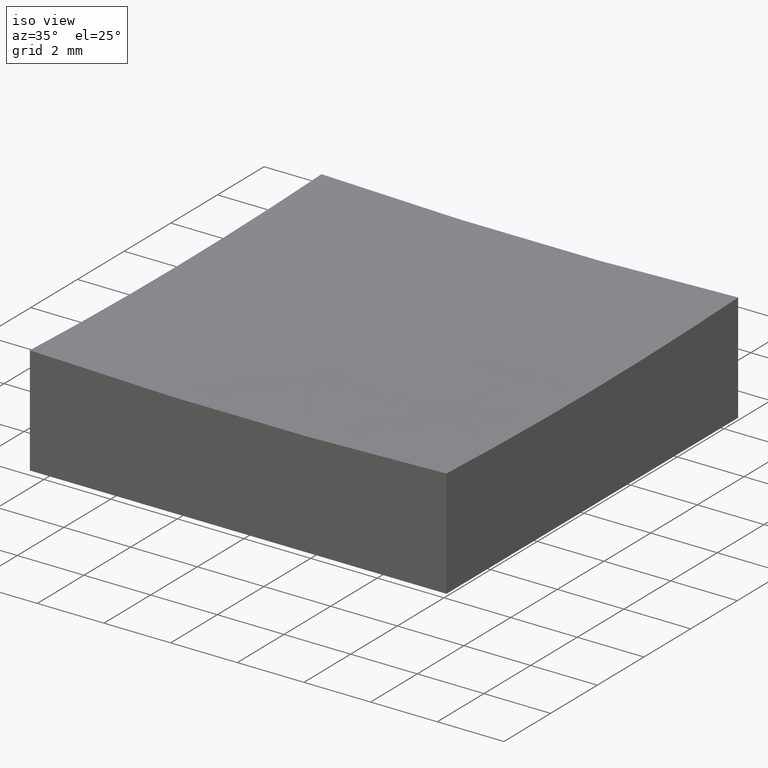
[diagram: clean part render]
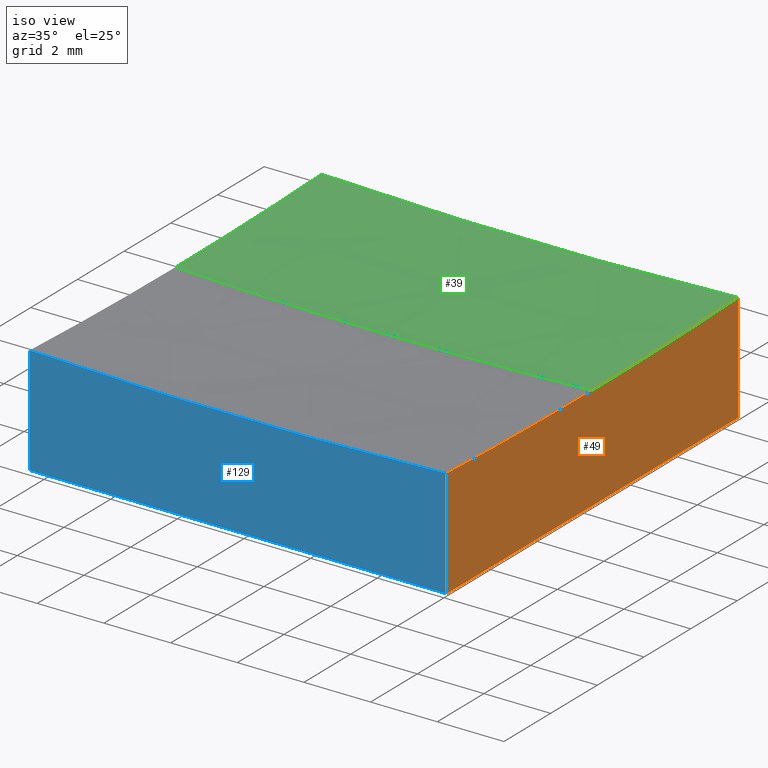
[diagram: same view with three faces highlighted in distinct colors, each labeled with its STEP entity id]
A machine part, iso view with three faces highlighted in distinct colors.
Their STEP definitions:

[orange] entity #49 — the highlighted planar face has unit normal (1, 0, -0).
#3 = VERTEX_POINT ( 'NONE', #142 ) ;
#5 = VECTOR ( 'NONE', #144, 1000.000000000000000 ) ;
#6 = ORIENTED_EDGE ( 'NONE', *, *, #86, .F. ) ;
#9 = CARTESIAN_POINT ( 'NONE',  ( 6.250000000000000000, -6.250000000000000888, 0.0000000000000000000 ) ) ;
#21 = CIRCLE ( 'NONE', #78, 149.8697351035224585 ) ;
#33 = DIRECTION ( 'NONE',  ( 1.000000000000000000, 0.0000000000000000000, -0.0000000000000000000 ) ) ;
#46 = EDGE_LOOP ( 'NONE', ( #235, #104, #79, #6, #121 ) ) ;
#49 = ADVANCED_FACE ( 'NONE', ( #161 ), #59, .T. ) ;
#51 = DIRECTION ( 'NONE',  ( -0.0000000000000000000, -0.0000000000000000000, -1.000000000000000000 ) ) ;
#54 = CARTESIAN_POINT ( 'NONE',  ( 6.250000000000000000, 0.0000000000000000000, 153.0000000000000000 ) ) ;
#59 = PLANE ( 'NONE',  #173 ) ;
#67 = CARTESIAN_POINT ( 'NONE',  ( 6.250000000000000000, -6.250000000000000888, 10.00000000000000000 ) ) ;
#76 = DIRECTION ( 'NONE',  ( 1.000000000000000000, 0.0000000000000000000, -0.0000000000000000000 ) ) ;
#78 = AXIS2_PLACEMENT_3D ( 'NONE', #54, #33, #187 ) ;
#79 = ORIENTED_EDGE ( 'NONE', *, *, #225, .F. ) ;
#85 = VERTEX_POINT ( 'NONE', #213 ) ;
#86 = EDGE_CURVE ( 'NONE', #147, #85, #178, .T. ) ;
#91 = VECTOR ( 'NONE', #51, 1000.000000000000000 ) ;
#104 = ORIENTED_EDGE ( 'NONE', *, *, #243, .T. ) ;
#114 = CARTESIAN_POINT ( 'NONE',  ( 6.250000000000000000, 6.250000000000000888, 0.0000000000000000000 ) ) ;
#115 = CARTESIAN_POINT ( 'NONE',  ( 6.250000000000000000, 6.250000000000000888, 3.260643116113293161 ) ) ;
#121 = ORIENTED_EDGE ( 'NONE', *, *, #199, .F. ) ;
#132 = VERTEX_POINT ( 'NONE', #203 ) ;
#133 = VECTOR ( 'NONE', #189, 1000.000000000000000 ) ;
#142 = CARTESIAN_POINT ( 'NONE',  ( 6.250000000000000000, 0.0000000000000000000, 3.130264896477552572 ) ) ;
#144 = DIRECTION ( 'NONE',  ( -0.0000000000000000000, -0.0000000000000000000, -1.000000000000000000 ) ) ;
#147 = VERTEX_POINT ( 'NONE', #115 ) ;
#148 = AXIS2_PLACEMENT_3D ( 'NONE', #241, #230, #151 ) ;
#151 = DIRECTION ( 'NONE',  ( 0.0000000000000000000, 0.0000000000000000000, -1.000000000000000000 ) ) ;
#161 = FACE_OUTER_BOUND ( 'NONE', #46, .T. ) ;
#173 = AXIS2_PLACEMENT_3D ( 'NONE', #174, #76, #175 ) ;
#174 = CARTESIAN_POINT ( 'NONE',  ( 6.250000000000000000, 6.250000000000000888, 10.00000000000000000 ) ) ;
#175 = DIRECTION ( 'NONE',  ( -0.0000000000000000000, 0.0000000000000000000, -1.000000000000000000 ) ) ;
#178 = LINE ( 'NONE', #232, #5 ) ;
#187 = DIRECTION ( 'NONE',  ( 0.0000000000000000000, 0.0000000000000000000, -1.000000000000000000 ) ) ;
#189 = DIRECTION ( 'NONE',  ( 0.0000000000000000000, -1.000000000000000000, 0.0000000000000000000 ) ) ;
#193 = CIRCLE ( 'NONE', #148, 149.8697351035224585 ) ;
#194 = VERTEX_POINT ( 'NONE', #9 ) ;
#199 = EDGE_CURVE ( 'NONE', #3, #147, #21, .T. ) ;
#203 = CARTESIAN_POINT ( 'NONE',  ( 6.250000000000000000, -6.250000000000000888, 3.260643116113293161 ) ) ;
#206 = LINE ( 'NONE', #114, #133 ) ;
#213 = CARTESIAN_POINT ( 'NONE',  ( 6.250000000000000000, 6.250000000000000888, 0.0000000000000000000 ) ) ;
#225 = EDGE_CURVE ( 'NONE', #85, #194, #206, .T. ) ;
#227 = LINE ( 'NONE', #67, #91 ) ;
#230 = DIRECTION ( 'NONE',  ( 1.000000000000000000, 0.0000000000000000000, -0.0000000000000000000 ) ) ;
#232 = CARTESIAN_POINT ( 'NONE',  ( 6.250000000000000000, 6.250000000000000888, 10.00000000000000000 ) ) ;
#235 = ORIENTED_EDGE ( 'NONE', *, *, #242, .F. ) ;
#241 = CARTESIAN_POINT ( 'NONE',  ( 6.250000000000000000, 0.0000000000000000000, 153.0000000000000000 ) ) ;
#242 = EDGE_CURVE ( 'NONE', #132, #3, #193, .T. ) ;
#243 = EDGE_CURVE ( 'NONE', #132, #194, #227, .T. ) ;

[blue] entity #129 — the highlighted planar face has unit normal (0, 1, 0).
#9 = CARTESIAN_POINT ( 'NONE',  ( 6.250000000000000000, -6.250000000000000888, 0.0000000000000000000 ) ) ;
#18 = CARTESIAN_POINT ( 'NONE',  ( -6.250000000000000000, -6.250000000000000888, 0.0000000000000000000 ) ) ;
#20 = ORIENTED_EDGE ( 'NONE', *, *, #243, .F. ) ;
#34 = CARTESIAN_POINT ( 'NONE',  ( -6.250000000000000000, -6.250000000000000888, 10.00000000000000000 ) ) ;
#47 = EDGE_LOOP ( 'NONE', ( #20, #101, #105, #234 ) ) ;
#51 = DIRECTION ( 'NONE',  ( -0.0000000000000000000, -0.0000000000000000000, -1.000000000000000000 ) ) ;
#53 = LINE ( 'NONE', #138, #170 ) ;
#66 = DIRECTION ( 'NONE',  ( 0.0000000000000000000, 0.0000000000000000000, 1.000000000000000000 ) ) ;
#67 = CARTESIAN_POINT ( 'NONE',  ( 6.250000000000000000, -6.250000000000000888, 10.00000000000000000 ) ) ;
#68 = VECTOR ( 'NONE', #149, 1000.000000000000000 ) ;
#91 = VECTOR ( 'NONE', #51, 1000.000000000000000 ) ;
#94 = CARTESIAN_POINT ( 'NONE',  ( 1.873709602695450291E-14, -6.250000000000000888, 153.0000000000000000 ) ) ;
#101 = ORIENTED_EDGE ( 'NONE', *, *, #185, .T. ) ;
#105 = ORIENTED_EDGE ( 'NONE', *, *, #219, .T. ) ;
#109 = DIRECTION ( 'NONE',  ( -0.0000000000000000000, -0.0000000000000000000, -1.000000000000000000 ) ) ;
#118 = EDGE_CURVE ( 'NONE', #215, #194, #204, .T. ) ;
#129 = ADVANCED_FACE ( 'NONE', ( #169 ), #171, .F. ) ;
#132 = VERTEX_POINT ( 'NONE', #203 ) ;
#137 = CARTESIAN_POINT ( 'NONE',  ( -6.250000000000000000, -6.250000000000000888, 0.0000000000000000000 ) ) ;
#138 = CARTESIAN_POINT ( 'NONE',  ( -6.250000000000000000, -6.250000000000000888, 10.00000000000000000 ) ) ;
#149 = DIRECTION ( 'NONE',  ( 1.000000000000000000, 0.0000000000000000000, 0.0000000000000000000 ) ) ;
#169 = FACE_OUTER_BOUND ( 'NONE', #47, .T. ) ;
#170 = VECTOR ( 'NONE', #109, 1000.000000000000000 ) ;
#171 = PLANE ( 'NONE',  #249 ) ;
#172 = CARTESIAN_POINT ( 'NONE',  ( -6.250000000000000000, -6.250000000000000888, 3.260643116113293161 ) ) ;
#185 = EDGE_CURVE ( 'NONE', #132, #202, #190, .T. ) ;
#186 = DIRECTION ( 'NONE',  ( 0.0000000000000000000, 1.000000000000000000, 0.0000000000000000000 ) ) ;
#190 = CIRCLE ( 'NONE', #239, 149.8697351035224585 ) ;
#194 = VERTEX_POINT ( 'NONE', #9 ) ;
#202 = VERTEX_POINT ( 'NONE', #172 ) ;
#203 = CARTESIAN_POINT ( 'NONE',  ( 6.250000000000000000, -6.250000000000000888, 3.260643116113293161 ) ) ;
#204 = LINE ( 'NONE', #137, #68 ) ;
#215 = VERTEX_POINT ( 'NONE', #18 ) ;
#219 = EDGE_CURVE ( 'NONE', #202, #215, #53, .T. ) ;
#221 = DIRECTION ( 'NONE',  ( 0.0000000000000000000, -0.0000000000000000000, 1.000000000000000000 ) ) ;
#227 = LINE ( 'NONE', #67, #91 ) ;
#234 = ORIENTED_EDGE ( 'NONE', *, *, #118, .T. ) ;
#239 = AXIS2_PLACEMENT_3D ( 'NONE', #94, #186, #66 ) ;
#240 = DIRECTION ( 'NONE',  ( 0.0000000000000000000, 1.000000000000000000, 0.0000000000000000000 ) ) ;
#243 = EDGE_CURVE ( 'NONE', #132, #194, #227, .T. ) ;
#249 = AXIS2_PLACEMENT_3D ( 'NONE', #34, #240, #221 ) ;

[green] entity #39 — the highlighted spherical surface has radius 150 mm.
#2 = CARTESIAN_POINT ( 'NONE',  ( -6.250000000000000000, 7.654042494670983244E-16, 3.130264896477552572 ) ) ;
#3 = VERTEX_POINT ( 'NONE', #142 ) ;
#10 = DIRECTION ( 'NONE',  ( 1.224646799147353207E-16, 1.000000000000000000, 1.519266480857635220E-33 ) ) ;
#11 = CARTESIAN_POINT ( 'NONE',  ( 1.873709602695450291E-14, 0.0000000000000000000, 153.0000000000000000 ) ) ;
#12 = AXIS2_PLACEMENT_3D ( 'NONE', #207, #10, #15 ) ;
#15 = DIRECTION ( 'NONE',  ( -1.000000000000000000, 1.224646799147353207E-16, 0.0000000000000000000 ) ) ;
#17 = DIRECTION ( 'NONE',  ( 1.000000000000000000, 0.0000000000000000000, -0.0000000000000000000 ) ) ;
#21 = CIRCLE ( 'NONE', #78, 149.8697351035224585 ) ;
#24 = ORIENTED_EDGE ( 'NONE', *, *, #199, .T. ) ;
#27 = AXIS2_PLACEMENT_3D ( 'NONE', #245, #42, #97 ) ;
#28 = ORIENTED_EDGE ( 'NONE', *, *, #154, .F. ) ;
#30 = DIRECTION ( 'NONE',  ( 0.0000000000000000000, -1.000000000000000000, 0.0000000000000000000 ) ) ;
#31 = CARTESIAN_POINT ( 'NONE',  ( -6.250000000000000000, 0.0000000000000000000, 153.0000000000000000 ) ) ;
#33 = DIRECTION ( 'NONE',  ( 1.000000000000000000, 0.0000000000000000000, -0.0000000000000000000 ) ) ;
#37 = AXIS2_PLACEMENT_3D ( 'NONE', #31, #17, #152 ) ;
#39 = ADVANCED_FACE ( 'NONE', ( #247 ), #77, .F. ) ;
#42 = DIRECTION ( 'NONE',  ( -0.0000000000000000000, 1.000000000000000000, 0.0000000000000000000 ) ) ;
#54 = CARTESIAN_POINT ( 'NONE',  ( 6.250000000000000000, 0.0000000000000000000, 153.0000000000000000 ) ) ;
#55 = EDGE_CURVE ( 'NONE', #147, #60, #106, .T. ) ;
#57 = CIRCLE ( 'NONE', #12, 149.9999999999999716 ) ;
#60 = VERTEX_POINT ( 'NONE', #155 ) ;
#61 = VERTEX_POINT ( 'NONE', #2 ) ;
#62 = CARTESIAN_POINT ( 'NONE',  ( 1.873709602695450291E-14, 6.250000000000000888, 153.0000000000000000 ) ) ;
#77 = SPHERICAL_SURFACE ( 'NONE', #27, 149.9999999999999716 ) ;
#78 = AXIS2_PLACEMENT_3D ( 'NONE', #54, #33, #187 ) ;
#92 = CARTESIAN_POINT ( 'NONE',  ( 2.978280986107261349E-14, 0.0000000000000000000, 3.000000000000030198 ) ) ;
#97 = DIRECTION ( 'NONE',  ( 1.000000000000000000, 0.0000000000000000000, 0.0000000000000000000 ) ) ;
#98 = CIRCLE ( 'NONE', #158, 149.9999999999999716 ) ;
#106 = CIRCLE ( 'NONE', #229, 149.8697351035224585 ) ;
#108 = DIRECTION ( 'NONE',  ( 0.0000000000000000000, 0.0000000000000000000, -1.000000000000000000 ) ) ;
#115 = CARTESIAN_POINT ( 'NONE',  ( 6.250000000000000000, 6.250000000000000888, 3.260643116113293161 ) ) ;
#124 = CIRCLE ( 'NONE', #37, 149.8697351035224585 ) ;
#141 = ORIENTED_EDGE ( 'NONE', *, *, #205, .F. ) ;
#142 = CARTESIAN_POINT ( 'NONE',  ( 6.250000000000000000, 0.0000000000000000000, 3.130264896477552572 ) ) ;
#147 = VERTEX_POINT ( 'NONE', #115 ) ;
#152 = DIRECTION ( 'NONE',  ( 0.0000000000000000000, 0.0000000000000000000, -1.000000000000000000 ) ) ;
#154 = EDGE_CURVE ( 'NONE', #61, #60, #124, .T. ) ;
#155 = CARTESIAN_POINT ( 'NONE',  ( -6.250000000000000000, 6.250000000000000888, 3.260643116113293161 ) ) ;
#156 = EDGE_CURVE ( 'NONE', #220, #3, #98, .T. ) ;
#158 = AXIS2_PLACEMENT_3D ( 'NONE', #11, #30, #108 ) ;
#159 = DIRECTION ( 'NONE',  ( 0.0000000000000000000, 1.000000000000000000, 0.0000000000000000000 ) ) ;
#184 = ORIENTED_EDGE ( 'NONE', *, *, #156, .T. ) ;
#187 = DIRECTION ( 'NONE',  ( 0.0000000000000000000, 0.0000000000000000000, -1.000000000000000000 ) ) ;
#192 = EDGE_LOOP ( 'NONE', ( #141, #184, #24, #237, #28 ) ) ;
#199 = EDGE_CURVE ( 'NONE', #3, #147, #21, .T. ) ;
#205 = EDGE_CURVE ( 'NONE', #220, #61, #57, .T. ) ;
#207 = CARTESIAN_POINT ( 'NONE',  ( 1.873709602695450291E-14, 0.0000000000000000000, 153.0000000000000000 ) ) ;
#214 = DIRECTION ( 'NONE',  ( 0.0000000000000000000, 0.0000000000000000000, 1.000000000000000000 ) ) ;
#220 = VERTEX_POINT ( 'NONE', #92 ) ;
#229 = AXIS2_PLACEMENT_3D ( 'NONE', #62, #159, #214 ) ;
#237 = ORIENTED_EDGE ( 'NONE', *, *, #55, .T. ) ;
#245 = CARTESIAN_POINT ( 'NONE',  ( 1.873709602695450291E-14, 0.0000000000000000000, 153.0000000000000000 ) ) ;
#247 = FACE_OUTER_BOUND ( 'NONE', #192, .T. ) ;